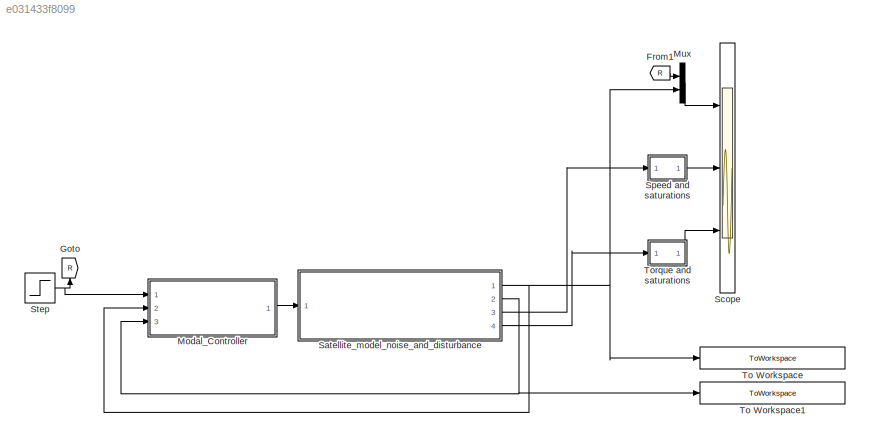
MODEL slx_e031433f8099
KIND model
CONFIG AbsTol = auto
CONFIG EnableMultiTasking = off
CONFIG FixedStep = auto
CONFIG MaxStep = auto
CONFIG MinStep = auto
CONFIG RelTol = 1e-3
CONFIG SampleTimeConstraint = Unconstrained
CONFIG SolverName = VariableStepAuto
CONFIG StartTime = 0.0
CONFIG StopTime = 60
BLOCK [From] From1
  GotoTag = R
BLOCK [Goto] Goto
  GotoTag = R
  NameLocation = right
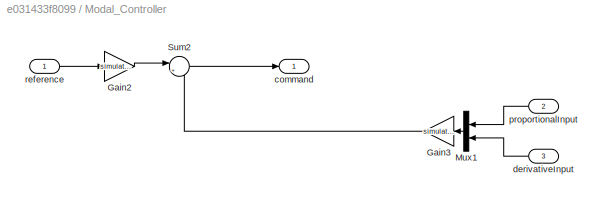
BLOCK [SubSystem] Modal_Controller
  Ports = [3, 1]
  RequestExecContextInheritance = off
BLOCK [Gain] Modal_Controller/Gain2
  Gain = simulationModalFeedForwardGain
BLOCK [Gain] Modal_Controller/Gain3
  Gain = simulationModalGainMatrixStateFeedback
  Multiplication = Matrix(K*u)
  NameLocation = top
BLOCK [Mux] Modal_Controller/Mux1
  DisplayOption = bar
  Inputs = 2
  NameLocation = top
  Ports = [2, 1]
BLOCK [Sum] Modal_Controller/Sum2
  Inputs = |+-
  Ports = [2, 1]
BLOCK [Outport] Modal_Controller/command
BLOCK [Inport] Modal_Controller/derivativeInput
  NameLocation = top
  Port = 3
BLOCK [Inport] Modal_Controller/proportionalInput
  NameLocation = top
  Port = 2
BLOCK [Inport] Modal_Controller/reference
BLOCK [Mux] Mux
  DisplayOption = bar
  Inputs = 2
  Ports = [2, 1]
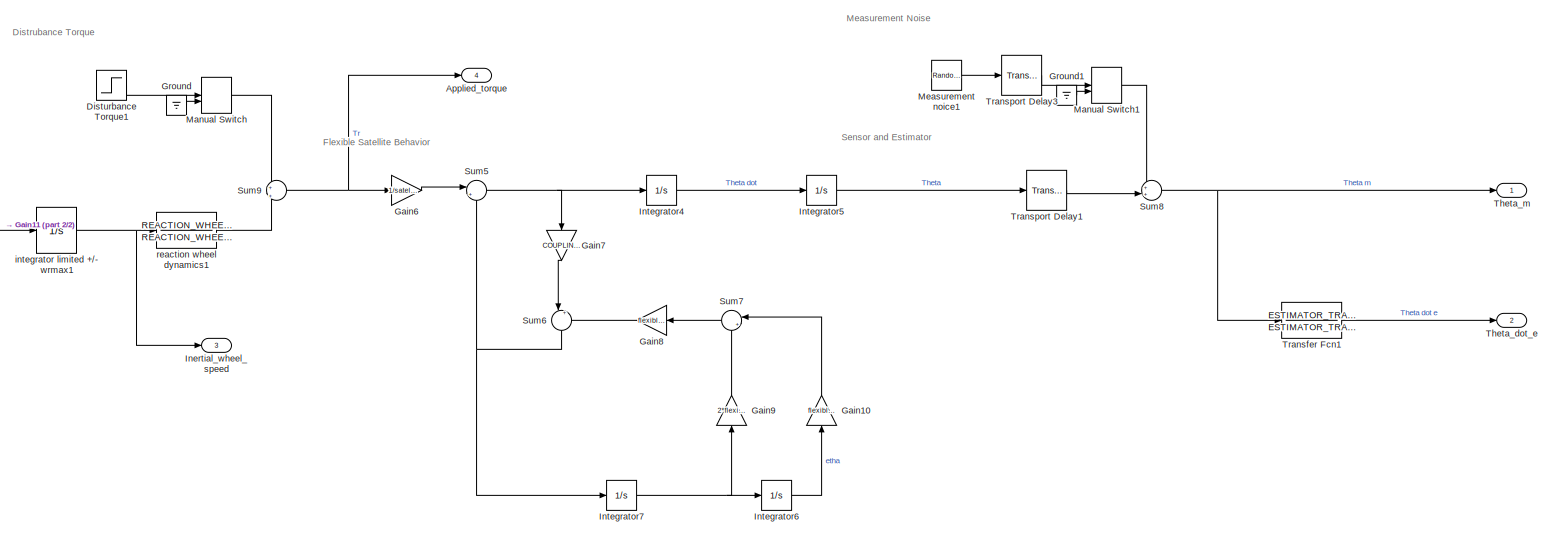
[diagram: Satellite_model_noise_and_disturbance - part 1/2, most of the canvas]
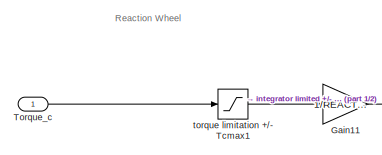
[diagram: Satellite_model_noise_and_disturbance - part 2/2, middle left region]
BLOCK [SubSystem] Satellite_model_noise_and_disturbance
  Ports = [1, 4]
  RequestExecContextInheritance = off
BLOCK [Outport] Satellite_model_noise_and_disturbance/Applied_torque
  Port = 4
BLOCK [Step] Satellite_model_noise_and_disturbance/Disturbance Torque1
  After = DISTURBANCE_TORQUE
  SampleTime = 0
  Time = DISTURBANCE_TORQUE_DELAY
BLOCK [Gain] Satellite_model_noise_and_disturbance/Gain10
  Gain = flexibleModeFrequency
  NameLocation = right
BLOCK [Gain] Satellite_model_noise_and_disturbance/Gain11
  Gain = 1/REACTION_WHEEL_INERTIA
BLOCK [Gain] Satellite_model_noise_and_disturbance/Gain6
  Gain = 1/satelliteInertia
BLOCK [Gain] Satellite_model_noise_and_disturbance/Gain7
  Gain = COUPLING_COEFFICIENT
  NameLocation = left
BLOCK [Gain] Satellite_model_noise_and_disturbance/Gain8
  Gain = flexibleModeFrequency
  NameLocation = top
BLOCK [Gain] Satellite_model_noise_and_disturbance/Gain9
  Gain = 2*flexibleModeDampingRatio
  NameLocation = right
BLOCK [Ground] Satellite_model_noise_and_disturbance/Ground
BLOCK [Ground] Satellite_model_noise_and_disturbance/Ground1
BLOCK [Outport] Satellite_model_noise_and_disturbance/Inertial_wheel_speed
  Port = 3
BLOCK [Integrator] Satellite_model_noise_and_disturbance/Integrator4
  Ports = [1, 1]
BLOCK [Integrator] Satellite_model_noise_and_disturbance/Integrator5
  Ports = [1, 1]
BLOCK [Integrator] Satellite_model_noise_and_disturbance/Integrator6
  InitialCondition = INITIAL_CONDITION_ON_STATE
  Ports = [1, 1]
BLOCK [Integrator] Satellite_model_noise_and_disturbance/Integrator7
  Ports = [1, 1]
BLOCK [ManualSwitch] Satellite_model_noise_and_disturbance/Manual Switch
  CurrentSetting = 0
BLOCK [ManualSwitch] Satellite_model_noise_and_disturbance/Manual Switch1
BLOCK [RandomNumber] Satellite_model_noise_and_disturbance/Measurement noice1
  SampleTime = 0.01
  Variance = MEASUREMENT_NOISE_VARIANCE
BLOCK [Sum] Satellite_model_noise_and_disturbance/Sum5
  Inputs = |++
  Ports = [2, 1]
BLOCK [Sum] Satellite_model_noise_and_disturbance/Sum6
  Inputs = |+-
  NameLocation = left
  Ports = [2, 1]
BLOCK [Sum] Satellite_model_noise_and_disturbance/Sum7
  Inputs = |++
  NameLocation = top
  Ports = [2, 1]
BLOCK [Sum] Satellite_model_noise_and_disturbance/Sum8
  Inputs = ++|
  Ports = [2, 1]
BLOCK [Sum] Satellite_model_noise_and_disturbance/Sum9
  Inputs = +|+
  Ports = [2, 1]
BLOCK [Outport] Satellite_model_noise_and_disturbance/Theta_dot_e
  Port = 2
BLOCK [Outport] Satellite_model_noise_and_disturbance/Theta_m
BLOCK [Inport] Satellite_model_noise_and_disturbance/Torque_c
BLOCK [TransferFcn] Satellite_model_noise_and_disturbance/Transfer Fcn1
  Denominator = ESTIMATOR_TRANSFER_FUNCTION_DENOMINATOR
  Numerator = ESTIMATOR_TRANSFER_FUNCTION_NUMERATOR
BLOCK [TransportDelay] Satellite_model_noise_and_disturbance/Transport Delay1
  DelayTime = MEASUREMENT_DELAY
  Ports = [1, 1]
BLOCK [TransportDelay] Satellite_model_noise_and_disturbance/Transport Delay3
  DelayTime = STAR_TRACKER_NOISE_DELAY
  Ports = [1, 1]
BLOCK [Integrator] Satellite_model_noise_and_disturbance/integrator limited +//- wrmax1
  LimitOutput = on
  LowerSaturationLimit = -REACTION_WHEEL_VELOCITY_SATURATION
  Ports = [1, 1]
  UpperSaturationLimit = REACTION_WHEEL_VELOCITY_SATURATION
BLOCK [TransferFcn] Satellite_model_noise_and_disturbance/reaction wheel dynamics1
  Denominator = REACTION_WHEEL_DYNAMICS_DENOMINATOR
  Numerator = REACTION_WHEEL_DYNAMICS_NUMERATOR
BLOCK [Saturate] Satellite_model_noise_and_disturbance/torque limitation +//- Tcmax1
  LowerLimit = -COMMANDED_TORQUE_SATURATION
  UpperLimit = COMMANDED_TORQUE_SATURATION
BLOCK [Scope] Scope
  Floating = off
  NumInputPorts = 3
  Ports = [3]
  ScopeSpecificationString = Simulink.scopes.TimeScopeBlockCfg('CurrentConfiguration', extmgr.ConfigurationSet(extmgr.Configuration('Core','General UI',true),extmgr.Configuration('Core','Source UI',true),extmgr.Configuration('Sources','WiredSimulink',true),extmgr.Configuration('Visuals','Time Domain',true,'SerializedDisplays',{struct('MinYLimReal','-0.00777','MaxYLimReal','0.06887','YLabelReal','','MinYLimMag','0.00000','MaxY...<+2915ch>
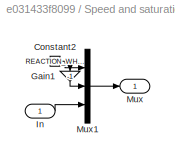
BLOCK [SubSystem] Speed and saturations
  Ports = [1, 1]
  RequestExecContextInheritance = off
BLOCK [Constant] Speed and saturations/Constant2
  Value = REACTION_WHEEL_VELOCITY_SATURATION
BLOCK [Gain] Speed and saturations/Gain1
  Gain = -1
  NameLocation = left
BLOCK [Inport] Speed and saturations/In
BLOCK [Outport] Speed and saturations/Mux
BLOCK [Mux] Speed and saturations/Mux1
  DisplayOption = bar
  Inputs = 3
  Ports = [3, 1]
BLOCK [Step] Step
  After = SMALL_POINTING_ERROR
  SampleTime = 0
  Time = 0
BLOCK [ToWorkspace] To Workspace
  FixptAsFi = on
  MaxDataPoints = inf
  Ports = [1]
  SampleTime = -1
  SaveFormat = Timeseries
  VariableName = measuredSatelliteAngle
BLOCK [ToWorkspace] To Workspace1
  FixptAsFi = on
  MaxDataPoints = inf
  Ports = [1]
  SampleTime = -1
  SaveFormat = Timeseries
  VariableName = estimatedSatelliteAngularSpeed
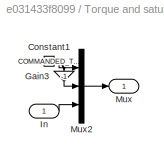
BLOCK [SubSystem] Torque and saturations
  Ports = [1, 1]
  RequestExecContextInheritance = off
BLOCK [Constant] Torque and saturations/Constant1
  Value = COMMANDED_TORQUE_SATURATION
BLOCK [Gain] Torque and saturations/Gain3
  Gain = -1
  NameLocation = left
BLOCK [Inport] Torque and saturations/In
BLOCK [Outport] Torque and saturations/Mux
BLOCK [Mux] Torque and saturations/Mux2
  DisplayOption = bar
  Inputs = 3
  Ports = [3, 1]
ANNOTATION Satellite_model_noise_and_disturbance: Distrubance Torque
ANNOTATION Satellite_model_noise_and_disturbance: Flexible Satellite Behavior
ANNOTATION Satellite_model_noise_and_disturbance: Measurement Noise
ANNOTATION Satellite_model_noise_and_disturbance: Reaction Wheel
ANNOTATION Satellite_model_noise_and_disturbance: Sensor and Estimator
LINE From1:1 -> Mux:1
LINE Modal_Controller/Gain2:1 -> Modal_Controller/Sum2:1
LINE Modal_Controller/Gain3:1 -> Modal_Controller/Sum2:2
LINE Modal_Controller/Mux1:1 -> Modal_Controller/Gain3:1
LINE Modal_Controller/Sum2:1 -> Modal_Controller/command:1
LINE Modal_Controller/derivativeInput:1 -> Modal_Controller/Mux1:2
LINE Modal_Controller/proportionalInput:1 -> Modal_Controller/Mux1:1
LINE Modal_Controller/reference:1 -> Modal_Controller/Gain2:1
LINE Modal_Controller:1 -> Satellite_model_noise_and_disturbance:1
LINE Mux:1 -> Scope:1
LINE Satellite_model_noise_and_disturbance/Disturbance Torque1:1 -> Satellite_model_noise_and_disturbance/Manual Switch:1
LINE Satellite_model_noise_and_disturbance/Gain10:1 -> Satellite_model_noise_and_disturbance/Sum7:1
LINE Satellite_model_noise_and_disturbance/Gain11:1 -> Satellite_model_noise_and_disturbance/integrator limited +//- wrmax1:1
LINE Satellite_model_noise_and_disturbance/Gain6:1 -> Satellite_model_noise_and_disturbance/Sum5:1
LINE Satellite_model_noise_and_disturbance/Gain7:1 -> Satellite_model_noise_and_disturbance/Sum6:1
LINE Satellite_model_noise_and_disturbance/Gain8:1 -> Satellite_model_noise_and_disturbance/Sum6:2
LINE Satellite_model_noise_and_disturbance/Gain9:1 -> Satellite_model_noise_and_disturbance/Sum7:2
LINE Satellite_model_noise_and_disturbance/Ground1:1 -> Satellite_model_noise_and_disturbance/Manual Switch1:2
LINE Satellite_model_noise_and_disturbance/Ground:1 -> Satellite_model_noise_and_disturbance/Manual Switch:2
LINE Satellite_model_noise_and_disturbance/Integrator4:1 -> Satellite_model_noise_and_disturbance/Integrator5:1
LINE Satellite_model_noise_and_disturbance/Integrator5:1 -> Satellite_model_noise_and_disturbance/Transport Delay1:1
LINE Satellite_model_noise_and_disturbance/Integrator6:1 -> Satellite_model_noise_and_disturbance/Gain10:1
NET Satellite_model_noise_and_disturbance/Integrator7:1 -> Satellite_model_noise_and_disturbance/Gain9:1, Satellite_model_noise_and_disturbance/Integrator6:1
LINE Satellite_model_noise_and_disturbance/Manual Switch1:1 -> Satellite_model_noise_and_disturbance/Sum8:1
LINE Satellite_model_noise_and_disturbance/Manual Switch:1 -> Satellite_model_noise_and_disturbance/Sum9:1
LINE Satellite_model_noise_and_disturbance/Measurement noice1:1 -> Satellite_model_noise_and_disturbance/Transport Delay3:1
NET Satellite_model_noise_and_disturbance/Sum5:1 -> Satellite_model_noise_and_disturbance/Gain7:1, Satellite_model_noise_and_disturbance/Integrator4:1
NET Satellite_model_noise_and_disturbance/Sum6:1 -> Satellite_model_noise_and_disturbance/Integrator7:1, Satellite_model_noise_and_disturbance/Sum5:2
LINE Satellite_model_noise_and_disturbance/Sum7:1 -> Satellite_model_noise_and_disturbance/Gain8:1
NET Satellite_model_noise_and_disturbance/Sum8:1 -> Satellite_model_noise_and_disturbance/Theta_m:1, Satellite_model_noise_and_disturbance/Transfer Fcn1:1
NET Satellite_model_noise_and_disturbance/Sum9:1 -> Satellite_model_noise_and_disturbance/Applied_torque:1, Satellite_model_noise_and_disturbance/Gain6:1
LINE Satellite_model_noise_and_disturbance/Torque_c:1 -> Satellite_model_noise_and_disturbance/torque limitation +//- Tcmax1:1
LINE Satellite_model_noise_and_disturbance/Transfer Fcn1:1 -> Satellite_model_noise_and_disturbance/Theta_dot_e:1
LINE Satellite_model_noise_and_disturbance/Transport Delay1:1 -> Satellite_model_noise_and_disturbance/Sum8:2
LINE Satellite_model_noise_and_disturbance/Transport Delay3:1 -> Satellite_model_noise_and_disturbance/Manual Switch1:1
NET Satellite_model_noise_and_disturbance/integrator limited +//- wrmax1:1 -> Satellite_model_noise_and_disturbance/Inertial_wheel_speed:1, Satellite_model_noise_and_disturbance/reaction wheel dynamics1:1
LINE Satellite_model_noise_and_disturbance/reaction wheel dynamics1:1 -> Satellite_model_noise_and_disturbance/Sum9:2
LINE Satellite_model_noise_and_disturbance/torque limitation +//- Tcmax1:1 -> Satellite_model_noise_and_disturbance/Gain11:1
NET Satellite_model_noise_and_disturbance:1 -> Modal_Controller:2, Mux:2, To Workspace:1
NET Satellite_model_noise_and_disturbance:2 -> Modal_Controller:3, To Workspace1:1
LINE Satellite_model_noise_and_disturbance:3 -> Speed and saturations:1
LINE Satellite_model_noise_and_disturbance:4 -> Torque and saturations:1
NET Speed and saturations/Constant2:1 -> Speed and saturations/Gain1:1, Speed and saturations/Mux1:1
LINE Speed and saturations/Gain1:1 -> Speed and saturations/Mux1:2
LINE Speed and saturations/In:1 -> Speed and saturations/Mux1:3
LINE Speed and saturations/Mux1:1 -> Speed and saturations/Mux:1
LINE Speed and saturations:1 -> Scope:2
NET Step:1 -> Goto:1, Modal_Controller:1
NET Torque and saturations/Constant1:1 -> Torque and saturations/Gain3:1, Torque and saturations/Mux2:1
LINE Torque and saturations/Gain3:1 -> Torque and saturations/Mux2:2
LINE Torque and saturations/In:1 -> Torque and saturations/Mux2:3
LINE Torque and saturations/Mux2:1 -> Torque and saturations/Mux:1
LINE Torque and saturations:1 -> Scope:3
note: NET lines group one-source signal fan-out (src -> all destinations, sorted); 1:1 wires keep LINE
